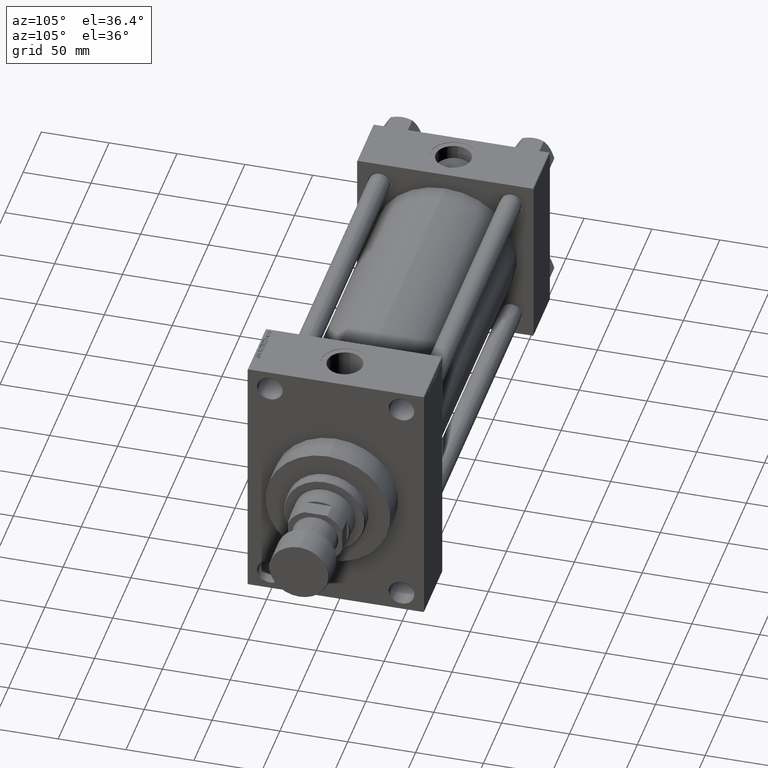
[diagram: clean part render]
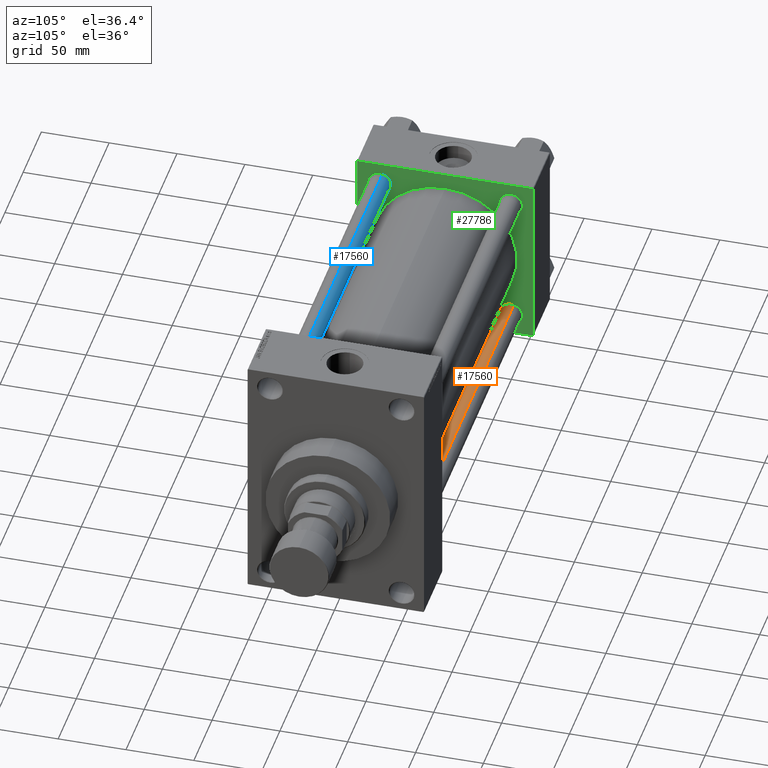
[diagram: same view with three faces highlighted in distinct colors, each labeled with its STEP entity id]
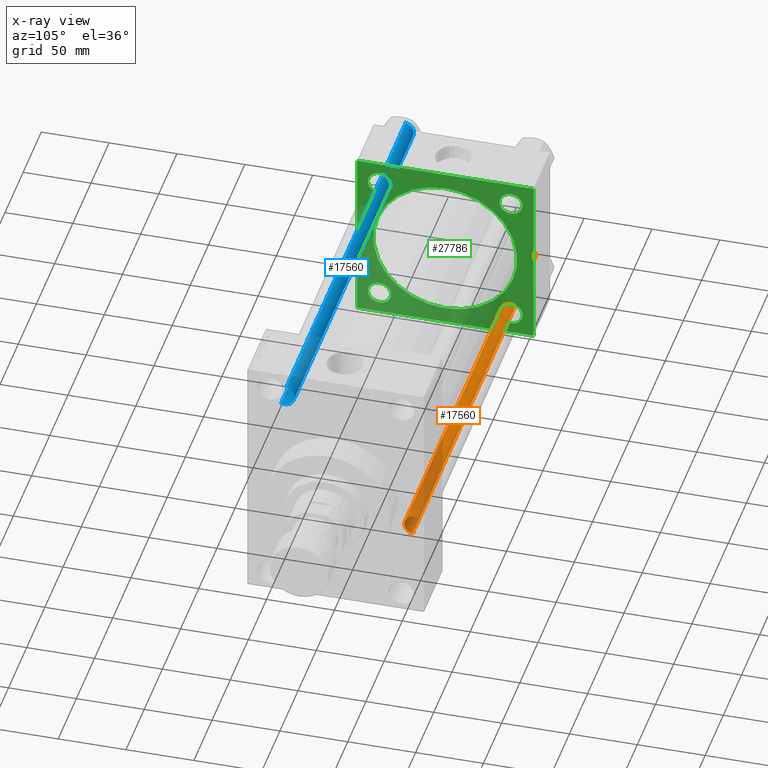
[diagram: x-ray of the same camera — body ghosted, the three highlighted faces saturated]
A machine part, auxiliary view with three faces highlighted in distinct colors.
The next image is the same camera in x-ray (body ghosted, the three faces saturated) — at least one of them is partly hidden behind the body in this view.
Their STEP definitions:

[orange] entity #17560 — the highlighted cylindrical surface (edge-blend (fillet) strip) has radius 8 mm, axis along (1, -0, 0).
#611 = DIRECTION ( 'NONE',  ( -0.000000000000000000, -0.000000000000000000, -1.000000000000000000 ) ) ;
#630 = CARTESIAN_POINT ( 'NONE',  ( 8.000000000000000000, 9.797174393178825657E-16, 329.0000000000000000 ) ) ;
#2257 = CARTESIAN_POINT ( 'NONE',  ( 0.000000000000000000, 0.000000000000000000, 328.5000000000000000 ) ) ;
#2433 = CARTESIAN_POINT ( 'NONE',  ( 8.000000000000000000, 9.797174393178825657E-16, 328.5000000000000000 ) ) ;
#4260 = CYLINDRICAL_SURFACE ( 'NONE', #47650, 8.000000000000000000 ) ;
#6508 = DIRECTION ( 'NONE',  ( -0.000000000000000000, -0.000000000000000000, -1.000000000000000000 ) ) ;
#7916 = LINE ( 'NONE', #630, #40870 ) ;
#8730 = ORIENTED_EDGE ( 'NONE', *, *, #24337, .T. ) ;
#8917 = VERTEX_POINT ( 'NONE', #25176 ) ;
#10331 = CARTESIAN_POINT ( 'NONE',  ( 0.000000000000000000, 0.000000000000000000, 0.4999999999998894218 ) ) ;
#12173 = ORIENTED_EDGE ( 'NONE', *, *, #22339, .F. ) ;
#12956 = ORIENTED_EDGE ( 'NONE', *, *, #21900, .T. ) ;
#13395 = VECTOR ( 'NONE', #6508, 1000.000000000000000 ) ;
#14235 = DIRECTION ( 'NONE',  ( -0.000000000000000000, -0.000000000000000000, 1.000000000000000000 ) ) ;
#14355 = CARTESIAN_POINT ( 'NONE',  ( -8.000000000000000000, 0.000000000000000000, 328.5000000000000000 ) ) ;
#14844 = CARTESIAN_POINT ( 'NONE',  ( -8.000000000000000000, 0.000000000000000000, 0.4999999999998894218 ) ) ;
#16824 = VERTEX_POINT ( 'NONE', #14844 ) ;
#17560 = ADVANCED_FACE ( 'NONE', ( #22734 ), #4260, .T. ) ;
#18360 = DIRECTION ( 'NONE',  ( 1.000000000000000000, 0.000000000000000000, 0.000000000000000000 ) ) ;
#19559 = CARTESIAN_POINT ( 'NONE',  ( 0.000000000000000000, 0.000000000000000000, 329.0000000000000000 ) ) ;
#20570 = AXIS2_PLACEMENT_3D ( 'NONE', #2257, #32187, #47024 ) ;
#21900 = EDGE_CURVE ( 'NONE', #23770, #23834, #22158, .T. ) ;
#22158 = CIRCLE ( 'NONE', #20570, 8.000000000000000000 ) ;
#22339 = EDGE_CURVE ( 'NONE', #23770, #8917, #7916, .T. ) ;
#22734 = FACE_OUTER_BOUND ( 'NONE', #29482, .T. ) ;
#23770 = VERTEX_POINT ( 'NONE', #2433 ) ;
#23834 = VERTEX_POINT ( 'NONE', #14355 ) ;
#24337 = EDGE_CURVE ( 'NONE', #16824, #8917, #31578, .T. ) ;
#24565 = AXIS2_PLACEMENT_3D ( 'NONE', #10331, #14235, #18360 ) ;
#25176 = CARTESIAN_POINT ( 'NONE',  ( 8.000000000000000000, 9.797174393178825657E-16, 0.4999999999998894218 ) ) ;
#26386 = DIRECTION ( 'NONE',  ( -1.000000000000000000, 0.000000000000000000, 0.000000000000000000 ) ) ;
#28641 = LINE ( 'NONE', #39843, #13395 ) ;
#29482 = EDGE_LOOP ( 'NONE', ( #12173, #12956, #35524, #8730 ) ) ;
#31578 = CIRCLE ( 'NONE', #24565, 8.000000000000000000 ) ;
#32187 = DIRECTION ( 'NONE',  ( 0.000000000000000000, 0.000000000000000000, -1.000000000000000000 ) ) ;
#34134 = EDGE_CURVE ( 'NONE', #23834, #16824, #28641, .T. ) ;
#35524 = ORIENTED_EDGE ( 'NONE', *, *, #34134, .T. ) ;
#39843 = CARTESIAN_POINT ( 'NONE',  ( -8.000000000000000000, 0.000000000000000000, 329.0000000000000000 ) ) ;
#40870 = VECTOR ( 'NONE', #44442, 1000.000000000000000 ) ;
#44442 = DIRECTION ( 'NONE',  ( -0.000000000000000000, -0.000000000000000000, -1.000000000000000000 ) ) ;
#47024 = DIRECTION ( 'NONE',  ( 1.000000000000000000, 0.000000000000000000, 0.000000000000000000 ) ) ;
#47650 = AXIS2_PLACEMENT_3D ( 'NONE', #19559, #611, #26386 ) ;

[blue] entity #17560 — the highlighted cylindrical surface (edge-blend (fillet) strip) has radius 8 mm, axis along (1, 0, 0).
#611 = DIRECTION ( 'NONE',  ( -0.000000000000000000, -0.000000000000000000, -1.000000000000000000 ) ) ;
#630 = CARTESIAN_POINT ( 'NONE',  ( 8.000000000000000000, 9.797174393178825657E-16, 329.0000000000000000 ) ) ;
#2257 = CARTESIAN_POINT ( 'NONE',  ( 0.000000000000000000, 0.000000000000000000, 328.5000000000000000 ) ) ;
#2433 = CARTESIAN_POINT ( 'NONE',  ( 8.000000000000000000, 9.797174393178825657E-16, 328.5000000000000000 ) ) ;
#4260 = CYLINDRICAL_SURFACE ( 'NONE', #47650, 8.000000000000000000 ) ;
#6508 = DIRECTION ( 'NONE',  ( -0.000000000000000000, -0.000000000000000000, -1.000000000000000000 ) ) ;
#7916 = LINE ( 'NONE', #630, #40870 ) ;
#8730 = ORIENTED_EDGE ( 'NONE', *, *, #24337, .T. ) ;
#8917 = VERTEX_POINT ( 'NONE', #25176 ) ;
#10331 = CARTESIAN_POINT ( 'NONE',  ( 0.000000000000000000, 0.000000000000000000, 0.4999999999998894218 ) ) ;
#12173 = ORIENTED_EDGE ( 'NONE', *, *, #22339, .F. ) ;
#12956 = ORIENTED_EDGE ( 'NONE', *, *, #21900, .T. ) ;
#13395 = VECTOR ( 'NONE', #6508, 1000.000000000000000 ) ;
#14235 = DIRECTION ( 'NONE',  ( -0.000000000000000000, -0.000000000000000000, 1.000000000000000000 ) ) ;
#14355 = CARTESIAN_POINT ( 'NONE',  ( -8.000000000000000000, 0.000000000000000000, 328.5000000000000000 ) ) ;
#14844 = CARTESIAN_POINT ( 'NONE',  ( -8.000000000000000000, 0.000000000000000000, 0.4999999999998894218 ) ) ;
#16824 = VERTEX_POINT ( 'NONE', #14844 ) ;
#17560 = ADVANCED_FACE ( 'NONE', ( #22734 ), #4260, .T. ) ;
#18360 = DIRECTION ( 'NONE',  ( 1.000000000000000000, 0.000000000000000000, 0.000000000000000000 ) ) ;
#19559 = CARTESIAN_POINT ( 'NONE',  ( 0.000000000000000000, 0.000000000000000000, 329.0000000000000000 ) ) ;
#20570 = AXIS2_PLACEMENT_3D ( 'NONE', #2257, #32187, #47024 ) ;
#21900 = EDGE_CURVE ( 'NONE', #23770, #23834, #22158, .T. ) ;
#22158 = CIRCLE ( 'NONE', #20570, 8.000000000000000000 ) ;
#22339 = EDGE_CURVE ( 'NONE', #23770, #8917, #7916, .T. ) ;
#22734 = FACE_OUTER_BOUND ( 'NONE', #29482, .T. ) ;
#23770 = VERTEX_POINT ( 'NONE', #2433 ) ;
#23834 = VERTEX_POINT ( 'NONE', #14355 ) ;
#24337 = EDGE_CURVE ( 'NONE', #16824, #8917, #31578, .T. ) ;
#24565 = AXIS2_PLACEMENT_3D ( 'NONE', #10331, #14235, #18360 ) ;
#25176 = CARTESIAN_POINT ( 'NONE',  ( 8.000000000000000000, 9.797174393178825657E-16, 0.4999999999998894218 ) ) ;
#26386 = DIRECTION ( 'NONE',  ( -1.000000000000000000, 0.000000000000000000, 0.000000000000000000 ) ) ;
#28641 = LINE ( 'NONE', #39843, #13395 ) ;
#29482 = EDGE_LOOP ( 'NONE', ( #12173, #12956, #35524, #8730 ) ) ;
#31578 = CIRCLE ( 'NONE', #24565, 8.000000000000000000 ) ;
#32187 = DIRECTION ( 'NONE',  ( 0.000000000000000000, 0.000000000000000000, -1.000000000000000000 ) ) ;
#34134 = EDGE_CURVE ( 'NONE', #23834, #16824, #28641, .T. ) ;
#35524 = ORIENTED_EDGE ( 'NONE', *, *, #34134, .T. ) ;
#39843 = CARTESIAN_POINT ( 'NONE',  ( -8.000000000000000000, 0.000000000000000000, 329.0000000000000000 ) ) ;
#40870 = VECTOR ( 'NONE', #44442, 1000.000000000000000 ) ;
#44442 = DIRECTION ( 'NONE',  ( -0.000000000000000000, -0.000000000000000000, -1.000000000000000000 ) ) ;
#47024 = DIRECTION ( 'NONE',  ( 1.000000000000000000, 0.000000000000000000, 0.000000000000000000 ) ) ;
#47650 = AXIS2_PLACEMENT_3D ( 'NONE', #19559, #611, #26386 ) ;

[green] entity #27786 — the highlighted planar face has unit normal (-1, 0, 0).
#418 = AXIS2_PLACEMENT_3D ( 'NONE', #17073, #27538, #1505 ) ;
#423 = EDGE_LOOP ( 'NONE', ( #36483, #12492 ) ) ;
#448 = ORIENTED_EDGE ( 'NONE', *, *, #22176, .T. ) ;
#623 = CARTESIAN_POINT ( 'NONE',  ( 45.00000000000000000, 48.45000000000000995, 48.45000000000001705 ) ) ;
#644 = EDGE_LOOP ( 'NONE', ( #14497, #33624 ) ) ;
#746 = CARTESIAN_POINT ( 'NONE',  ( 45.00000000000000000, 64.49999999999997158, -64.99999999999998579 ) ) ;
#1505 = DIRECTION ( 'NONE',  ( 0.000000000000000000, 0.000000000000000000, 1.000000000000000000 ) ) ;
#1617 = VERTEX_POINT ( 'NONE', #7462 ) ;
#1671 = VERTEX_POINT ( 'NONE', #13216 ) ;
#1700 = ORIENTED_EDGE ( 'NONE', *, *, #9349, .T. ) ;
#1803 = CARTESIAN_POINT ( 'NONE',  ( 45.00000000000000000, 65.00000000000000000, 64.49999999999998579 ) ) ;
#2537 = LINE ( 'NONE', #7339, #10445 ) ;
#2752 = CIRCLE ( 'NONE', #29939, 8.500000000000007105 ) ;
#2821 = DIRECTION ( 'NONE',  ( -1.000000000000000000, 0.000000000000000000, -0.000000000000000000 ) ) ;
#3381 = CIRCLE ( 'NONE', #22811, 8.499999999999840128 ) ;
#3947 = DIRECTION ( 'NONE',  ( 0.000000000000000000, 0.000000000000000000, -1.000000000000000000 ) ) ;
#4378 = EDGE_CURVE ( 'NONE', #47912, #7345, #32595, .T. ) ;
#4483 = CARTESIAN_POINT ( 'NONE',  ( 45.00000000000000000, 64.49999999999997158, 65.00000000000001421 ) ) ;
#4723 = ORIENTED_EDGE ( 'NONE', *, *, #22457, .T. ) ;
#5541 = AXIS2_PLACEMENT_3D ( 'NONE', #13085, #16980, #6038 ) ;
#5626 = EDGE_LOOP ( 'NONE', ( #8825, #42429, #35907, #22462, #31701, #17810, #1700, #13027 ) ) ;
#5690 = CARTESIAN_POINT ( 'NONE',  ( 45.00000000000000000, -48.44999999999999574, 48.45000000000003126 ) ) ;
#5965 = VERTEX_POINT ( 'NONE', #45184 ) ;
#6038 = DIRECTION ( 'NONE',  ( 0.000000000000000000, 0.000000000000000000, 1.000000000000000000 ) ) ;
#6961 = DIRECTION ( 'NONE',  ( 0.000000000000000000, 0.000000000000000000, 1.000000000000000000 ) ) ;
#7066 = VECTOR ( 'NONE', #3947, 1000.000000000000000 ) ;
#7186 = FACE_BOUND ( 'NONE', #30872, .T. ) ;
#7339 = CARTESIAN_POINT ( 'NONE',  ( 45.00000000000000000, 65.00000000000000000, -64.49999999999995737 ) ) ;
#7345 = VERTEX_POINT ( 'NONE', #8049 ) ;
#7352 = DIRECTION ( 'NONE',  ( 0.000000000000000000, -1.000000000000000000, -1.067522139062650425E-16 ) ) ;
#7462 = CARTESIAN_POINT ( 'NONE',  ( 44.99999999999998579, -2.602085213965210642E-15, 53.00000000000000711 ) ) ;
#7651 = DIRECTION ( 'NONE',  ( 0.000000000000000000, -0.7071067811865474617, 0.7071067811865474617 ) ) ;
#7772 = CARTESIAN_POINT ( 'NONE',  ( 45.00000000000000000, -65.00000000000000000, 64.50000000000000000 ) ) ;
#7915 = VERTEX_POINT ( 'NONE', #21595 ) ;
#7946 = EDGE_LOOP ( 'NONE', ( #8970, #4723 ) ) ;
#7976 = VECTOR ( 'NONE', #33805, 1000.000000000000000 ) ;
#8027 = VERTEX_POINT ( 'NONE', #15474 ) ;
#8049 = CARTESIAN_POINT ( 'NONE',  ( 45.00000000000000000, 48.45000000000000995, 39.95000000000000284 ) ) ;
#8167 = CARTESIAN_POINT ( 'NONE',  ( 45.00000000000000000, 48.45000000000000995, -56.95000000000002416 ) ) ;
#8386 = AXIS2_PLACEMENT_3D ( 'NONE', #34631, #12252, #31447 ) ;
#8473 = EDGE_CURVE ( 'NONE', #47652, #29415, #44110, .T. ) ;
#8825 = ORIENTED_EDGE ( 'NONE', *, *, #36273, .F. ) ;
#8970 = ORIENTED_EDGE ( 'NONE', *, *, #14379, .T. ) ;
#9057 = VERTEX_POINT ( 'NONE', #38755 ) ;
#9349 = EDGE_CURVE ( 'NONE', #30471, #8027, #37525, .T. ) ;
#9726 = EDGE_CURVE ( 'NONE', #36062, #30471, #18491, .T. ) ;
#9868 = VERTEX_POINT ( 'NONE', #34758 ) ;
#10025 = EDGE_CURVE ( 'NONE', #7345, #47912, #34316, .T. ) ;
#10251 = CARTESIAN_POINT ( 'NONE',  ( 45.00000000000000000, 48.45000000000000995, 56.95000000000002416 ) ) ;
#10445 = VECTOR ( 'NONE', #35868, 1000.000000000000114 ) ;
#11564 = VERTEX_POINT ( 'NONE', #33579 ) ;
#11654 = CARTESIAN_POINT ( 'NONE',  ( 45.00000000000000000, -64.49999999999994316, -65.00000000000000000 ) ) ;
#11902 = AXIS2_PLACEMENT_3D ( 'NONE', #30351, #37436, #44258 ) ;
#12252 = DIRECTION ( 'NONE',  ( -1.000000000000000000, 0.000000000000000000, -0.000000000000000000 ) ) ;
#12303 = CARTESIAN_POINT ( 'NONE',  ( 45.00000000000000000, -48.44999999999999574, -56.94999999999986784 ) ) ;
#12386 = AXIS2_PLACEMENT_3D ( 'NONE', #623, #44910, #6961 ) ;
#12416 = EDGE_CURVE ( 'NONE', #1617, #11564, #38276, .T. ) ;
#12492 = ORIENTED_EDGE ( 'NONE', *, *, #4378, .T. ) ;
#13027 = ORIENTED_EDGE ( 'NONE', *, *, #35272, .T. ) ;
#13085 = CARTESIAN_POINT ( 'NONE',  ( 45.00000000000000000, 48.45000000000000995, 48.45000000000001705 ) ) ;
#13176 = VERTEX_POINT ( 'NONE', #12303 ) ;
#13216 = CARTESIAN_POINT ( 'NONE',  ( 45.00000000000000000, -48.44999999999999574, 56.94999999999986784 ) ) ;
#13447 = CARTESIAN_POINT ( 'NONE',  ( 44.99999999999998579, -2.602085213965210642E-15, 0.000000000000000000 ) ) ;
#14379 = EDGE_CURVE ( 'NONE', #9057, #1671, #3381, .T. ) ;
#14497 = ORIENTED_EDGE ( 'NONE', *, *, #12416, .F. ) ;
#15183 = CARTESIAN_POINT ( 'NONE',  ( 45.00000000000000000, -48.44999999999999574, -48.45000000000003126 ) ) ;
#15474 = CARTESIAN_POINT ( 'NONE',  ( 45.00000000000000000, -65.00000000000000000, -64.49999999999991473 ) ) ;
#16733 = EDGE_LOOP ( 'NONE', ( #19760, #448 ) ) ;
#16980 = DIRECTION ( 'NONE',  ( -1.000000000000000000, 0.000000000000000000, -0.000000000000000000 ) ) ;
#17073 = CARTESIAN_POINT ( 'NONE',  ( 45.00000000000000000, 48.45000000000000995, -48.45000000000001705 ) ) ;
#17810 = ORIENTED_EDGE ( 'NONE', *, *, #9726, .T. ) ;
#18096 = AXIS2_PLACEMENT_3D ( 'NONE', #13447, #46776, #28287 ) ;
#18114 = DIRECTION ( 'NONE',  ( 0.000000000000000000, 0.000000000000000000, 1.000000000000000000 ) ) ;
#18369 = FACE_BOUND ( 'NONE', #423, .T. ) ;
#18491 = LINE ( 'NONE', #7772, #43637 ) ;
#19760 = ORIENTED_EDGE ( 'NONE', *, *, #45263, .T. ) ;
#20631 = CARTESIAN_POINT ( 'NONE',  ( 45.00000000000000000, 65.00000000000000000, -64.49999999999995737 ) ) ;
#21391 = CIRCLE ( 'NONE', #418, 8.500000000000007105 ) ;
#21595 = CARTESIAN_POINT ( 'NONE',  ( 45.00000000000000000, 48.45000000000000995, -39.95000000000000284 ) ) ;
#22024 = FACE_BOUND ( 'NONE', #16733, .T. ) ;
#22176 = EDGE_CURVE ( 'NONE', #7915, #39111, #2752, .T. ) ;
#22457 = EDGE_CURVE ( 'NONE', #1671, #9057, #29976, .T. ) ;
#22462 = ORIENTED_EDGE ( 'NONE', *, *, #40305, .T. ) ;
#22811 = AXIS2_PLACEMENT_3D ( 'NONE', #47332, #2821, #43932 ) ;
#23007 = VERTEX_POINT ( 'NONE', #746 ) ;
#23228 = DIRECTION ( 'NONE',  ( 0.000000000000000000, 0.000000000000000000, 1.000000000000000000 ) ) ;
#23281 = DIRECTION ( 'NONE',  ( -1.000000000000000000, 0.000000000000000000, -0.000000000000000000 ) ) ;
#23555 = VECTOR ( 'NONE', #42143, 1000.000000000000000 ) ;
#25203 = ORIENTED_EDGE ( 'NONE', *, *, #36822, .T. ) ;
#25896 = DIRECTION ( 'NONE',  ( -1.000000000000000000, 0.000000000000000000, -0.000000000000000000 ) ) ;
#26092 = CARTESIAN_POINT ( 'NONE',  ( 45.00000000000000000, -65.00000000000000000, 65.00000000000000000 ) ) ;
#26319 = DIRECTION ( 'NONE',  ( 0.000000000000000000, 0.000000000000000000, -1.000000000000000000 ) ) ;
#26498 = DIRECTION ( 'NONE',  ( -0.000000000000000000, -0.7071067811865672237, -0.7071067811865279218 ) ) ;
#26810 = ORIENTED_EDGE ( 'NONE', *, *, #45746, .T. ) ;
#26962 = LINE ( 'NONE', #11654, #7976 ) ;
#27055 = CARTESIAN_POINT ( 'NONE',  ( 45.00000000000000000, 65.00000000000000000, -64.99999999999998579 ) ) ;
#27318 = FACE_OUTER_BOUND ( 'NONE', #5626, .T. ) ;
#27538 = DIRECTION ( 'NONE',  ( -1.000000000000000000, 0.000000000000000000, -0.000000000000000000 ) ) ;
#27618 = AXIS2_PLACEMENT_3D ( 'NONE', #15183, #25896, #18114 ) ;
#27786 = ADVANCED_FACE ( 'NONE', ( #7186, #22024, #36883, #18369, #33233, #27318 ), #39000, .F. ) ;
#27933 = DIRECTION ( 'NONE',  ( 0.000000000000000000, 0.000000000000000000, 1.000000000000000000 ) ) ;
#28287 = DIRECTION ( 'NONE',  ( 0.000000000000000000, 0.000000000000000000, 1.000000000000000000 ) ) ;
#29415 = VERTEX_POINT ( 'NONE', #20631 ) ;
#29486 = LINE ( 'NONE', #33618, #41575 ) ;
#29939 = AXIS2_PLACEMENT_3D ( 'NONE', #34722, #23281, #38135 ) ;
#29976 = CIRCLE ( 'NONE', #43980, 8.499999999999840128 ) ;
#30351 = CARTESIAN_POINT ( 'NONE',  ( 45.00000000000000000, -48.44999999999999574, -48.45000000000003126 ) ) ;
#30471 = VERTEX_POINT ( 'NONE', #46425 ) ;
#30491 = LINE ( 'NONE', #4483, #31295 ) ;
#30872 = EDGE_LOOP ( 'NONE', ( #26810, #25203 ) ) ;
#31232 = CARTESIAN_POINT ( 'NONE',  ( 45.00000000000000000, -64.49999999999997158, 65.00000000000000000 ) ) ;
#31295 = VECTOR ( 'NONE', #7651, 1000.000000000000114 ) ;
#31300 = CIRCLE ( 'NONE', #11902, 8.499999999999840128 ) ;
#31447 = DIRECTION ( 'NONE',  ( -0.000000000000000000, 0.000000000000000000, 1.000000000000000000 ) ) ;
#31479 = DIRECTION ( 'NONE',  ( -1.000000000000000000, 0.000000000000000000, -0.000000000000000000 ) ) ;
#31701 = ORIENTED_EDGE ( 'NONE', *, *, #43860, .T. ) ;
#32300 = CARTESIAN_POINT ( 'NONE',  ( 45.00000000000000000, -48.44999999999999574, -39.95000000000018758 ) ) ;
#32595 = CIRCLE ( 'NONE', #12386, 8.500000000000007105 ) ;
#33109 = CIRCLE ( 'NONE', #27618, 8.499999999999840128 ) ;
#33233 = FACE_BOUND ( 'NONE', #644, .T. ) ;
#33579 = CARTESIAN_POINT ( 'NONE',  ( 44.99999999999998579, 3.888542821515762466E-15, -53.00000000000000711 ) ) ;
#33618 = CARTESIAN_POINT ( 'NONE',  ( 45.00000000000000000, 65.00000000000000000, 65.00000000000001421 ) ) ;
#33624 = ORIENTED_EDGE ( 'NONE', *, *, #35730, .F. ) ;
#33805 = DIRECTION ( 'NONE',  ( 0.000000000000000000, 0.7071067811865279218, -0.7071067811865671127 ) ) ;
#34316 = CIRCLE ( 'NONE', #5541, 8.500000000000007105 ) ;
#34631 = CARTESIAN_POINT ( 'NONE',  ( 45.00000000000000000, 0.000000000000000000, 0.000000000000000000 ) ) ;
#34722 = CARTESIAN_POINT ( 'NONE',  ( 45.00000000000000000, 48.45000000000000995, -48.45000000000001705 ) ) ;
#34758 = CARTESIAN_POINT ( 'NONE',  ( 45.00000000000000000, -64.49999999999994316, -65.00000000000000000 ) ) ;
#34835 = LINE ( 'NONE', #27055, #23555 ) ;
#35244 = DIRECTION ( 'NONE',  ( 1.000000000000000000, -0.000000000000000000, 0.000000000000000000 ) ) ;
#35272 = EDGE_CURVE ( 'NONE', #8027, #9868, #26962, .T. ) ;
#35730 = EDGE_CURVE ( 'NONE', #11564, #1617, #39061, .T. ) ;
#35868 = DIRECTION ( 'NONE',  ( -0.000000000000000000, 0.7071067811865474617, 0.7071067811865474617 ) ) ;
#35907 = ORIENTED_EDGE ( 'NONE', *, *, #8473, .F. ) ;
#36062 = VERTEX_POINT ( 'NONE', #31232 ) ;
#36273 = EDGE_CURVE ( 'NONE', #23007, #9868, #34835, .T. ) ;
#36483 = ORIENTED_EDGE ( 'NONE', *, *, #10025, .T. ) ;
#36822 = EDGE_CURVE ( 'NONE', #44084, #13176, #31300, .T. ) ;
#36883 = FACE_BOUND ( 'NONE', #7946, .T. ) ;
#37281 = CARTESIAN_POINT ( 'NONE',  ( 45.00000000000000000, 65.00000000000000000, 65.00000000000001421 ) ) ;
#37436 = DIRECTION ( 'NONE',  ( -1.000000000000000000, 0.000000000000000000, -0.000000000000000000 ) ) ;
#37525 = LINE ( 'NONE', #26092, #38933 ) ;
#38135 = DIRECTION ( 'NONE',  ( 0.000000000000000000, 0.000000000000000000, 1.000000000000000000 ) ) ;
#38276 = CIRCLE ( 'NONE', #44513, 53.00000000000000711 ) ;
#38755 = CARTESIAN_POINT ( 'NONE',  ( 45.00000000000000000, -48.44999999999999574, 39.95000000000018758 ) ) ;
#38933 = VECTOR ( 'NONE', #26319, 1000.000000000000000 ) ;
#39000 = PLANE ( 'NONE',  #8386 ) ;
#39061 = CIRCLE ( 'NONE', #18096, 53.00000000000000711 ) ;
#39111 = VERTEX_POINT ( 'NONE', #8167 ) ;
#40305 = EDGE_CURVE ( 'NONE', #47652, #5965, #30491, .T. ) ;
#41575 = VECTOR ( 'NONE', #7352, 1000.000000000000000 ) ;
#41900 = CARTESIAN_POINT ( 'NONE',  ( 44.99999999999998579, -2.602085213965210642E-15, 0.000000000000000000 ) ) ;
#42143 = DIRECTION ( 'NONE',  ( 0.000000000000000000, -1.000000000000000000, -1.067522139062650425E-16 ) ) ;
#42429 = ORIENTED_EDGE ( 'NONE', *, *, #42473, .T. ) ;
#42473 = EDGE_CURVE ( 'NONE', #23007, #29415, #2537, .T. ) ;
#43637 = VECTOR ( 'NONE', #26498, 1000.000000000000000 ) ;
#43860 = EDGE_CURVE ( 'NONE', #5965, #36062, #29486, .T. ) ;
#43932 = DIRECTION ( 'NONE',  ( 0.000000000000000000, 0.000000000000000000, 1.000000000000000000 ) ) ;
#43980 = AXIS2_PLACEMENT_3D ( 'NONE', #5690, #31479, #23228 ) ;
#44084 = VERTEX_POINT ( 'NONE', #32300 ) ;
#44110 = LINE ( 'NONE', #37281, #7066 ) ;
#44258 = DIRECTION ( 'NONE',  ( 0.000000000000000000, 0.000000000000000000, 1.000000000000000000 ) ) ;
#44513 = AXIS2_PLACEMENT_3D ( 'NONE', #41900, #35244, #27933 ) ;
#44910 = DIRECTION ( 'NONE',  ( -1.000000000000000000, 0.000000000000000000, -0.000000000000000000 ) ) ;
#45184 = CARTESIAN_POINT ( 'NONE',  ( 45.00000000000000000, 64.49999999999997158, 65.00000000000001421 ) ) ;
#45263 = EDGE_CURVE ( 'NONE', #39111, #7915, #21391, .T. ) ;
#45746 = EDGE_CURVE ( 'NONE', #13176, #44084, #33109, .T. ) ;
#46425 = CARTESIAN_POINT ( 'NONE',  ( 45.00000000000000000, -65.00000000000000000, 64.50000000000000000 ) ) ;
#46776 = DIRECTION ( 'NONE',  ( 1.000000000000000000, -0.000000000000000000, 0.000000000000000000 ) ) ;
#47332 = CARTESIAN_POINT ( 'NONE',  ( 45.00000000000000000, -48.44999999999999574, 48.45000000000003126 ) ) ;
#47652 = VERTEX_POINT ( 'NONE', #1803 ) ;
#47912 = VERTEX_POINT ( 'NONE', #10251 ) ;